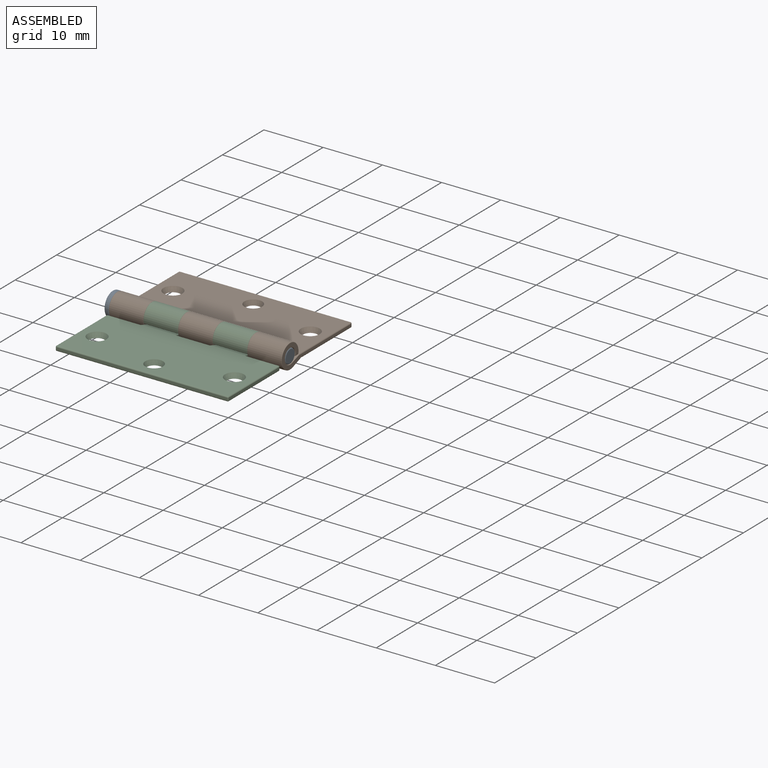
[diagram: assembled view]
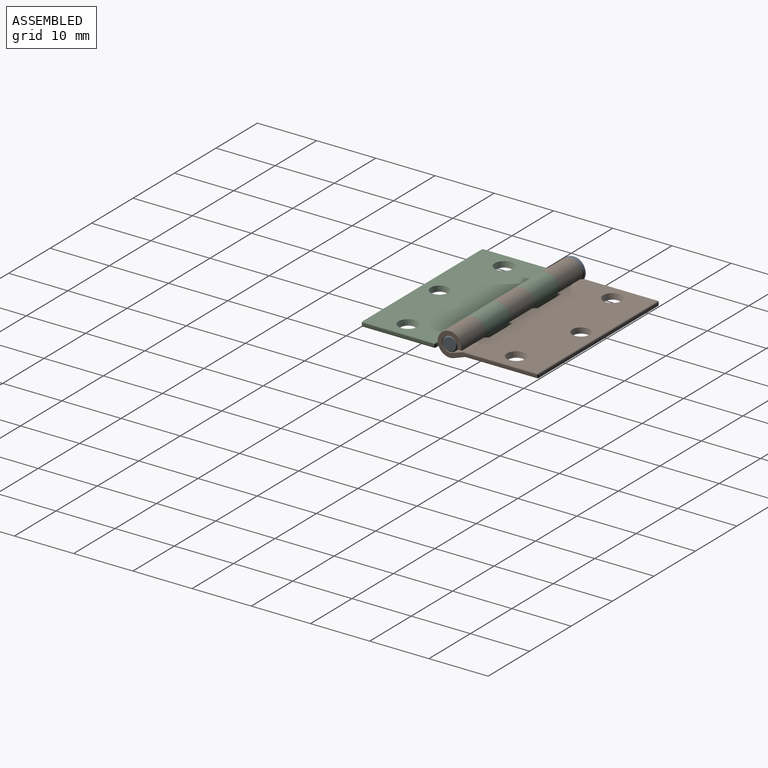
[diagram: assembled view, second angle]
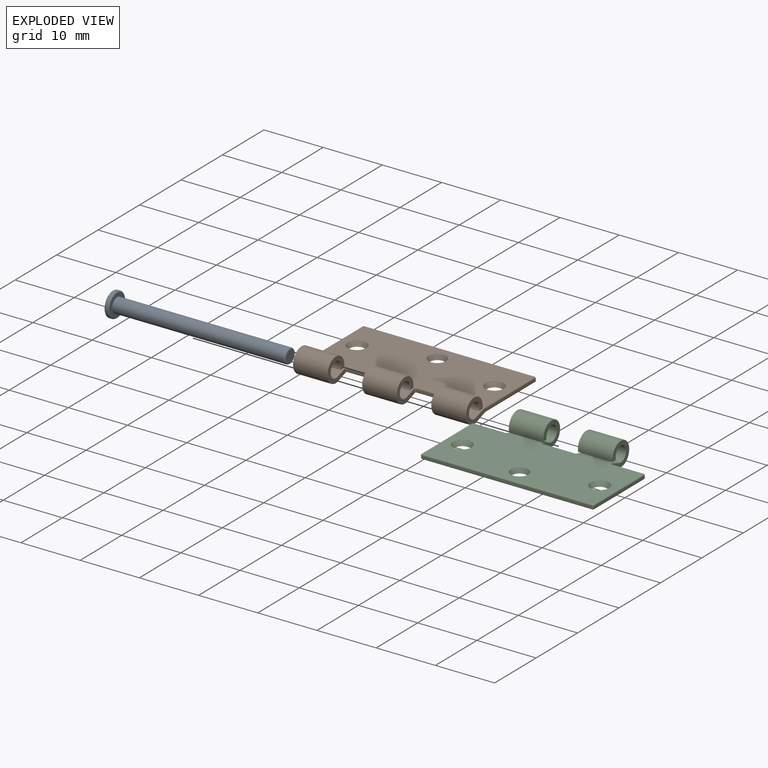
[diagram: exploded view]
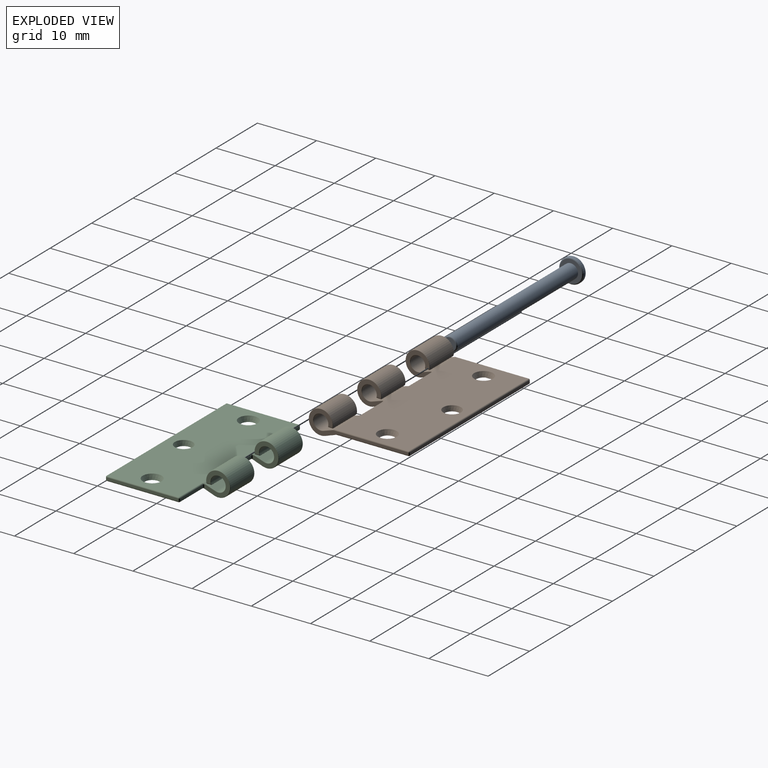
[diagram: exploded view, second angle]
ASSEMBLY  parts=3 mates=4
PART A: 8 faces, bbox 30x4.4x4.4 mm
  f0: cylinder r=1.22mm len=29mm, axis (-1,0,0), area 223.2mm2, adj f4,f7
  f1: plane 2.05x2.05mm, normal (1,0,0), area 3.3mm2, adj f7
  f2: cylinder r=2.05mm len=4.1mm, axis (1,0,0), area 5.2mm2, adj f5,f6
  f3: plane 3.7x3.7mm, normal (-1,0,0), area 10.8mm2, adj f6
  f4: plane 3.7x3.7mm, normal (1,0,0), area 6mm2, adj f0,f5
  f5: torus R=1.85mm, axis (-1,0,0), area 3.9mm2, adj f2,f4
  f6: torus R=1.85mm, axis (-1,0,0), area 3.9mm2, adj f2,f3
  f7: torus R=1.03mm, axis (-1,0,0), area 2.3mm2, adj f0,f1
PART B: 121 faces, bbox 29.3x17.3x4.5 mm
  f0: plane 5.76x1.8mm, normal (0,0.34,-0.94), area 10.7mm2, adj f2,f10,f39,f45,f115,f120
  f1: plane 5.83x2.04mm, normal (0,0.34,-0.94), area 10.7mm2, adj f3,f10,f69,f75,f98,f118
  f2: cylinder r=2.05mm len=5.74mm, axis (-1,0,0), area 62.1mm2, adj f0,f40,f41,f42,f43,f44
  f3: cylinder r=2.05mm len=5.74mm, axis (-1,0,0), area 62.1mm2, adj f1,f70,f71,f72,f73,f74
  f4: plane 5.44x0.73mm, normal (0,0,-1), area 4mm2, adj f34,f35,f42,f50
  f5: plane 5.44x0.73mm, normal (0,0,-1), area 4mm2, adj f36,f38,f72,f79
  f6: cylinder r=1.25mm len=5.74mm, axis (-1,0,0), area 38.6mm2, adj f8,f48,f49,f50,f51,f52
  f7: cylinder r=1.25mm len=5.74mm, axis (-1,0,0), area 38.6mm2, adj f9,f77,f78,f79,f80,f81
  f8: plane 5.74x2.05mm, normal (0,-0.32,0.95), area 12.4mm2, adj f6,f16,f46,f47,f53,f54,f83,f103
  f9: plane 5.75x2.03mm, normal (0,-0.32,0.95), area 12.2mm2, adj f7,f76,f82,f105,f109,f110,f114
  f10: plane 28.8x12.3mm, normal (0,0,-1), area 338.3mm2, adj f0,f1,f11,f20,f21,f22,f91,f97
  f11: plane 5.83x2.04mm, normal (0,0.34,-0.94), area 10.7mm2, adj f10,f12,f62,f68,f91,f117
  f12: cylinder r=2.05mm len=5.74mm, axis (-1,0,0), area 62.1mm2, adj f11,f63,f64,f65,f66,f67
  f13: plane 5.44x0.73mm, normal (0,0,-1), area 4mm2, adj f33,f37,f58,f65
  f14: cylinder r=1.25mm len=5.74mm, axis (-1,0,0), area 38.6mm2, adj f15,f56,f57,f58,f59,f60
  f15: plane 5.75x2.03mm, normal (0,-0.32,0.95), area 12.2mm2, adj f14,f55,f61,f86,f88,f90,f93
  f16: plane 28.8x12.3mm, normal (0,0,1), area 328.4mm2, adj f8,f20,f21,f22,f83,f84,f87,f90
  f17: plane 28.8x0.4mm, normal (0,1,0), area 11.5mm2, adj f96,f97,f101,f102
  f18: plane 16.75x4mm, normal (1,0,0), area 12.3mm2, adj f38,f74,f75,f81,f82,f98,f102,f108
  f19: plane 16.75x4mm, normal (-1,0,0), area 12.3mm2, adj f37,f55,f56,f62,f63,f91,f95,f96
  f20: cone r=1.6mm half-angle=26.6deg, axis (0,0,1), area 7.9mm2, adj f10,f16
  f21: cone r=1.2mm half-angle=20.6deg, axis (0,0,1), area 7.2mm2, adj f10,f16
  f22: cone r=1.2mm half-angle=26.6deg, axis (0,0,1), area 7.9mm2, adj f10,f16
  f23: plane 4.45x4.02mm, normal (1,0,0), area 7.3mm2, adj f29,f35,f44,f45,f52,f53,f103,f120
  f24: plane 4.45x4.02mm, normal (-1,0,0), area 7.3mm2, adj f30,f36,f69,f70,f76,f77,f106,f118
  f25: plane 5.44x0.4mm, normal (0,-1,0), area 2.2mm2, adj f29,f30,f107,f119
  f26: plane 4.45x4.02mm, normal (1,0,0), area 7.3mm2, adj f32,f33,f60,f61,f67,f68,f85,f117
  f27: plane 4.45x4.02mm, normal (-1,0,0), area 7.3mm2, adj f31,f34,f39,f40,f47,f48,f83,f115
  f28: plane 5.44x0.4mm, normal (0,-1,0), area 2.2mm2, adj f31,f32,f84,f116
  f29: cylinder r=0.2mm len=0.4mm, axis (0,0,1), area 0.1mm2, adj f23,f25,f103,f120
  f30: cylinder r=0.2mm len=0.4mm, axis (0,0,-1), area 0.1mm2, adj f24,f25,f111,f118
  f31: cylinder r=0.2mm len=0.4mm, axis (0,0,-1), area 0.1mm2, adj f27,f28,f83,f115
  f32: cylinder r=0.2mm len=0.4mm, axis (0,0,1), area 0.1mm2, adj f26,f28,f87,f117
  f33: cylinder r=0.2mm len=0.76mm, axis (0,-1,0), area 0.2mm2, adj f13,f26,f59,f66
  f34: cylinder r=0.2mm len=0.76mm, axis (0,1,0), area 0.2mm2, adj f4,f27,f41,f49
  f35: cylinder r=0.2mm len=0.76mm, axis (0,-1,0), area 0.2mm2, adj f4,f23,f43,f51
  f36: cylinder r=0.2mm len=0.76mm, axis (0,1,0), area 0.2mm2, adj f5,f24,f71,f78
  f37: cylinder r=0.2mm len=0.76mm, axis (0,-1,0), area 0.2mm2, adj f13,f19,f57,f64
  f38: cylinder r=0.2mm len=0.76mm, axis (0,1,0), area 0.2mm2, adj f5,f18,f73,f80
  f39: cylinder r=0.05mm len=1.8mm, axis (0,0.94,0.34), area 0.1mm2, adj f0,f27,f40,f115
  f40: torus R=2mm, axis (-1,0,0), area 0.8mm2, adj f2,f27,f39,f41
  f41: bspline ~0.24x0.21mm, area 0mm2, adj f2,f34,f40,f42
  f42: cylinder r=0.05mm len=5.44mm, axis (-1,0,0), area 0.4mm2, adj f2,f4,f41,f43
  f43: bspline ~0.24x0.21mm, area 0mm2, adj f2,f35,f42,f44
  f44: torus R=2mm, axis (-1,0,0), area 0.8mm2, adj f2,f23,f43,f45
  f45: cylinder r=0.05mm len=1.8mm, axis (0,-0.94,-0.34), area 0.1mm2, adj f0,f23,f44,f120
  f46: bspline ~0.09x0.08mm, area 0mm2, adj f8,f47,f83
  f47: cylinder r=0.05mm len=1.85mm, axis (0,-0.95,-0.32), area 0.1mm2, adj f8,f27,f46,f48,f83
  f48: torus R=1.3mm, axis (-1,0,0), area 0.5mm2, adj f6,f27,f47,f49
  f49: bspline ~0.25x0.21mm, area 0mm2, adj f6,f34,f48,f50
  f50: cylinder r=0.05mm len=5.44mm, axis (-1,0,0), area 0.5mm2, adj f4,f6,f49,f51
  f51: bspline ~0.25x0.22mm, area 0mm2, adj f6,f35,f50,f52
  f52: torus R=1.3mm, axis (-1,0,0), area 0.5mm2, adj f6,f23,f51,f53
  f53: cylinder r=0.05mm len=1.85mm, axis (0,0.95,0.32), area 0.1mm2, adj f8,f23,f52,f54,f103
  f54: bspline ~0.09x0.08mm, area 0mm2, adj f8,f53,f103
  f55: cylinder r=0.05mm len=1.61mm, axis (0,0.95,0.32), area 0.1mm2, adj f15,f19,f56,f93
  f56: torus R=1.3mm, axis (1,0,0), area 0.5mm2, adj f14,f19,f55,f57
  f57: bspline ~0.25x0.21mm, area 0mm2, adj f14,f37,f56,f58
  f58: cylinder r=0.05mm len=5.44mm, axis (-1,0,0), area 0.5mm2, adj f13,f14,f57,f59
  f59: bspline ~0.25x0.22mm, area 0mm2, adj f14,f33,f58,f60
  f60: torus R=1.3mm, axis (-1,0,0), area 0.5mm2, adj f14,f26,f59,f61
  f61: cylinder r=0.05mm len=1.61mm, axis (0,0.95,0.32), area 0.1mm2, adj f15,f26,f60,f86
  f62: cylinder r=0.05mm len=2.2mm, axis (0,-0.94,-0.34), area 0.2mm2, adj f11,f19,f63,f91
  f63: torus R=2mm, axis (1,0,0), area 0.8mm2, adj f12,f19,f62,f64
  f64: bspline ~0.24x0.21mm, area 0mm2, adj f12,f37,f63,f65
  f65: cylinder r=0.05mm len=5.44mm, axis (-1,0,0), area 0.4mm2, adj f12,f13,f64,f66
  f66: bspline ~0.24x0.21mm, area 0mm2, adj f12,f33,f65,f67
  f67: torus R=2mm, axis (-1,0,0), area 0.8mm2, adj f12,f26,f66,f68
  f68: cylinder r=0.05mm len=1.8mm, axis (0,-0.94,-0.34), area 0.1mm2, adj f11,f26,f67,f117
  f69: cylinder r=0.05mm len=1.8mm, axis (0,0.94,0.34), area 0.1mm2, adj f1,f24,f70,f118
  f70: torus R=2mm, axis (-1,0,0), area 0.8mm2, adj f3,f24,f69,f71
  f71: bspline ~0.24x0.21mm, area 0mm2, adj f3,f36,f70,f72
  f72: cylinder r=0.05mm len=5.44mm, axis (-1,0,0), area 0.4mm2, adj f3,f5,f71,f73
  f73: bspline ~0.24x0.21mm, area 0mm2, adj f3,f38,f72,f74
  f74: torus R=2mm, axis (1,0,0), area 0.8mm2, adj f3,f18,f73,f75
  f75: cylinder r=0.05mm len=2.2mm, axis (0,0.94,0.34), area 0.2mm2, adj f1,f18,f74,f98
  f76: cylinder r=0.05mm len=1.61mm, axis (0,-0.95,-0.32), area 0.1mm2, adj f9,f24,f77,f105
  f77: torus R=1.3mm, axis (-1,0,0), area 0.5mm2, adj f7,f24,f76,f78
  f78: bspline ~0.25x0.21mm, area 0mm2, adj f7,f36,f77,f79
  f79: cylinder r=0.05mm len=5.44mm, axis (-1,0,0), area 0.5mm2, adj f5,f7,f78,f80
  f80: bspline ~0.25x0.22mm, area 0mm2, adj f7,f38,f79,f81
  f81: torus R=1.3mm, axis (1,0,0), area 0.5mm2, adj f7,f18,f80,f82
  f82: cylinder r=0.05mm len=1.61mm, axis (0,-0.95,-0.32), area 0.1mm2, adj f9,f18,f81,f109
  f83: torus R=0.4mm, axis (0,0,1), area 0.1mm2, adj f8,f16,f27,f31,f46,f47,f84
  f84: cylinder r=0.2mm len=5.44mm, axis (-1,0,0), area 1.7mm2, adj f16,f28,f83,f87
  f85: cylinder r=0.2mm len=0.24mm, axis (0,1,0), area 0mm2, adj f26,f86,f87
  f86: bspline ~0.47x0.21mm, area 0mm2, adj f15,f61,f85,f88
  f87: torus R=0.4mm, axis (0,0,1), area 0.1mm2, adj f16,f32,f84,f85,f88,f89
  f88: bspline ~0.29x0.13mm, area 0mm2, adj f15,f86,f87,f89
  f89: bspline ~0.08x0.05mm, area 0mm2, adj f87,f88,f90
  f90: cylinder r=0.2mm len=5.59mm, axis (-1,0,0), area 0.4mm2, adj f15,f16,f89,f92
  f91: cylinder r=0.2mm len=12.3mm, axis (0,-1,0), area 3.8mm2, adj f10,f11,f19,f62,f94
  f92: bspline ~0.08x0.08mm, area 0mm2, adj f90,f93,f95
  f93: bspline ~0.54x0.23mm, area 0mm2, adj f15,f55,f92,f95
  f94: sphere r=0.2mm, area 0.1mm2, adj f91,f96,f97
  f95: cylinder r=0.2mm len=12.74mm, axis (0,1,0), area 3.9mm2, adj f16,f19,f92,f93,f99
  f96: cylinder r=0.2mm len=0.4mm, axis (0,0,-1), area 0.1mm2, adj f17,f19,f94,f99
  f97: cylinder r=0.2mm len=28.8mm, axis (-1,0,0), area 9mm2, adj f10,f17,f94,f100
  f98: cylinder r=0.2mm len=12.3mm, axis (0,1,0), area 3.8mm2, adj f1,f10,f18,f75,f100
  f99: sphere r=0.2mm, area 0.1mm2, adj f95,f96,f101
  f100: sphere r=0.2mm, area 0mm2, adj f97,f98,f102
  f101: cylinder r=0.2mm len=28.8mm, axis (-1,0,0), area 9mm2, adj f16,f17,f99,f104
  f102: cylinder r=0.2mm len=0.4mm, axis (0,0,1), area 0.1mm2, adj f17,f18,f100,f104
  f103: torus R=0.4mm, axis (0,0,1), area 0.1mm2, adj f8,f16,f23,f29,f53,f54,f107
  f104: sphere r=0.2mm, area 0mm2, adj f101,f102,f108
  f105: bspline ~0.47x0.21mm, area 0mm2, adj f9,f76,f106,f110
  f106: cylinder r=0.2mm len=0.24mm, axis (0,-1,0), area 0mm2, adj f24,f105,f111
  f107: cylinder r=0.2mm len=5.44mm, axis (-1,0,0), area 1.7mm2, adj f16,f25,f103,f111
  f108: cylinder r=0.2mm len=12.74mm, axis (0,-1,0), area 3.9mm2, adj f16,f18,f104,f109,f112
  f109: bspline ~0.6x0.26mm, area 0mm2, adj f9,f82,f108,f112
  f110: bspline ~0.21x0.09mm, area 0mm2, adj f9,f105,f111,f113
  f111: torus R=0.4mm, axis (0,0,1), area 0.1mm2, adj f16,f30,f106,f107,f110,f113
  f112: bspline ~0.08x0.08mm, area 0mm2, adj f108,f109,f114
  f113: bspline ~0.11x0.07mm, area 0mm2, adj f110,f111,f114
  f114: cylinder r=0.2mm len=5.59mm, axis (-1,0,0), area 0.4mm2, adj f9,f16,f112,f113
  f115: torus R=0.4mm, axis (0,0,-1), area 0.1mm2, adj f0,f10,f27,f31,f39,f116
  f116: cylinder r=0.2mm len=5.44mm, axis (1,0,0), area 1.7mm2, adj f10,f28,f115,f117
  f117: torus R=0.4mm, axis (0,0,-1), area 0.1mm2, adj f10,f11,f26,f32,f68,f116
  f118: torus R=0.4mm, axis (0,0,-1), area 0.1mm2, adj f1,f10,f24,f30,f69,f119
  f119: cylinder r=0.2mm len=5.44mm, axis (1,0,0), area 1.7mm2, adj f10,f25,f118,f120
  f120: torus R=0.4mm, axis (0,0,-1), area 0.1mm2, adj f0,f10,f23,f29,f45,f119
PART C: 97 faces, bbox 29.2x17.2x4.5 mm
  f0: plane 5.76x1.8mm, normal (0,-0.34,-0.94), area 10.7mm2, adj f2,f12,f33,f39,f79,f94
  f1: plane 5.76x1.8mm, normal (0,-0.34,-0.94), area 10.7mm2, adj f3,f12,f49,f55,f65,f96
  f2: cylinder r=2.05mm len=5.74mm, axis (-1,0,0), area 62.1mm2, adj f0,f34,f35,f36,f37,f38
  f3: cylinder r=2.05mm len=5.74mm, axis (-1,0,0), area 62.1mm2, adj f1,f50,f51,f52,f53,f54
  f4: plane 5.44x0.73mm, normal (0,0,-1), area 4mm2, adj f26,f31,f36,f44
  f5: plane 5.44x0.73mm, normal (0,0,-1), area 4mm2, adj f25,f32,f52,f60
  f6: cylinder r=1.25mm len=5.74mm, axis (-1,0,0), area 38.6mm2, adj f8,f42,f43,f44,f45,f46
  f7: cylinder r=1.25mm len=5.74mm, axis (-1,0,0), area 38.6mm2, adj f9,f58,f59,f60,f61,f62
  f8: plane 5.74x2.05mm, normal (0,0.32,0.95), area 12.4mm2, adj f6,f13,f40,f41,f47,f48,f90,f91
  f9: plane 5.74x2.05mm, normal (0,0.32,0.95), area 12.4mm2, adj f7,f13,f56,f57,f63,f64,f67,f93
  f10: plane 12.1x0.4mm, normal (1,0,0), area 4.8mm2, adj f70,f71,f74,f75
  f11: plane 12.1x0.4mm, normal (-1,0,0), area 4.8mm2, adj f81,f82,f86,f87
  f12: plane 28.8x12.3mm, normal (0,0,-1), area 337.2mm2, adj f0,f1,f15,f16,f17,f65,f66,f71
  f13: plane 28.8x12.3mm, normal (0,0,1), area 327.6mm2, adj f8,f9,f15,f16,f17,f67,f69,f74
  f14: plane 28.8x0.4mm, normal (0,-1,0), area 11.5mm2, adj f75,f76,f80,f81
  f15: cone r=1.6mm half-angle=26.6deg, axis (0,0,1), area 7.9mm2, adj f12,f13
  f16: cone r=1.2mm half-angle=20.6deg, axis (0,0,1), area 7.2mm2, adj f12,f13
  f17: cone r=1.2mm half-angle=26.6deg, axis (0,0,1), area 7.9mm2, adj f12,f13
  f18: plane 4.45x4.02mm, normal (1,0,0), area 7.3mm2, adj f27,f32,f54,f55,f62,f63,f65,f67
  f19: plane 5.44x0.4mm, normal (0,1,0), area 2.2mm2, adj f27,f66,f69,f70
  f20: plane 4.45x4.02mm, normal (-1,0,0), area 7.3mm2, adj f25,f28,f49,f50,f57,f58,f93,f96
  f21: plane 4.45x4.02mm, normal (1,0,0), area 7.3mm2, adj f26,f29,f38,f39,f46,f47,f91,f94
  f22: plane 5.44x0.4mm, normal (0,1,0), area 2.2mm2, adj f28,f29,f92,f95
  f23: plane 4.45x4.02mm, normal (-1,0,0), area 7.3mm2, adj f30,f31,f33,f34,f41,f42,f79,f90
  f24: plane 5.44x0.4mm, normal (0,1,0), area 2.2mm2, adj f30,f83,f87,f89
  f25: cylinder r=0.2mm len=0.76mm, axis (0,1,0), area 0.2mm2, adj f5,f20,f51,f59
  f26: cylinder r=0.2mm len=0.76mm, axis (0,-1,0), area 0.2mm2, adj f4,f21,f37,f45
  f27: cylinder r=0.2mm len=0.4mm, axis (0,0,-1), area 0.1mm2, adj f18,f19,f65,f67
  f28: cylinder r=0.2mm len=0.4mm, axis (0,0,1), area 0.1mm2, adj f20,f22,f93,f96
  f29: cylinder r=0.2mm len=0.4mm, axis (0,0,-1), area 0.1mm2, adj f21,f22,f91,f94
  f30: cylinder r=0.2mm len=0.4mm, axis (0,0,1), area 0.1mm2, adj f23,f24,f79,f90
  f31: cylinder r=0.2mm len=0.76mm, axis (0,1,0), area 0.2mm2, adj f4,f23,f35,f43
  f32: cylinder r=0.2mm len=0.76mm, axis (0,-1,0), area 0.2mm2, adj f5,f18,f53,f61
  f33: cylinder r=0.05mm len=1.8mm, axis (0,0.94,-0.34), area 0.1mm2, adj f0,f23,f34,f79
  f34: torus R=2mm, axis (1,0,0), area 0.8mm2, adj f2,f23,f33,f35
  f35: bspline ~0.24x0.21mm, area 0mm2, adj f2,f31,f34,f36
  f36: cylinder r=0.05mm len=5.44mm, axis (-1,0,0), area 0.4mm2, adj f2,f4,f35,f37
  f37: bspline ~0.24x0.21mm, area 0mm2, adj f2,f26,f36,f38
  f38: torus R=2mm, axis (1,0,0), area 0.8mm2, adj f2,f21,f37,f39
  f39: cylinder r=0.05mm len=1.8mm, axis (0,-0.94,0.34), area 0.1mm2, adj f0,f21,f38,f94
  f40: bspline ~0.09x0.08mm, area 0mm2, adj f8,f41,f90
  f41: cylinder r=0.05mm len=1.85mm, axis (0,-0.95,0.32), area 0.1mm2, adj f8,f23,f40,f42,f90
  f42: torus R=1.3mm, axis (1,0,0), area 0.5mm2, adj f6,f23,f41,f43
  f43: bspline ~0.25x0.22mm, area 0mm2, adj f6,f31,f42,f44
  f44: cylinder r=0.05mm len=5.44mm, axis (-1,0,0), area 0.5mm2, adj f4,f6,f43,f45
  f45: bspline ~0.25x0.21mm, area 0mm2, adj f6,f26,f44,f46
  f46: torus R=1.3mm, axis (1,0,0), area 0.5mm2, adj f6,f21,f45,f47
  f47: cylinder r=0.05mm len=1.85mm, axis (0,0.95,-0.32), area 0.1mm2, adj f8,f21,f46,f48,f91
  f48: bspline ~0.09x0.08mm, area 0mm2, adj f8,f47,f91
  f49: cylinder r=0.05mm len=1.8mm, axis (0,0.94,-0.34), area 0.1mm2, adj f1,f20,f50,f96
  f50: torus R=2mm, axis (1,0,0), area 0.8mm2, adj f3,f20,f49,f51
  f51: bspline ~0.24x0.21mm, area 0mm2, adj f3,f25,f50,f52
  f52: cylinder r=0.05mm len=5.44mm, axis (-1,0,0), area 0.4mm2, adj f3,f5,f51,f53
  f53: bspline ~0.24x0.21mm, area 0mm2, adj f3,f32,f52,f54
  f54: torus R=2mm, axis (1,0,0), area 0.8mm2, adj f3,f18,f53,f55
  f55: cylinder r=0.05mm len=1.8mm, axis (0,-0.94,0.34), area 0.1mm2, adj f1,f18,f54,f65
  f56: bspline ~0.09x0.08mm, area 0mm2, adj f9,f57,f93
  f57: cylinder r=0.05mm len=1.85mm, axis (0,-0.95,0.32), area 0.1mm2, adj f9,f20,f56,f58,f93
  f58: torus R=1.3mm, axis (1,0,0), area 0.5mm2, adj f7,f20,f57,f59
  f59: bspline ~0.25x0.22mm, area 0mm2, adj f7,f25,f58,f60
  f60: cylinder r=0.05mm len=5.44mm, axis (-1,0,0), area 0.5mm2, adj f5,f7,f59,f61
  f61: bspline ~0.25x0.21mm, area 0mm2, adj f7,f32,f60,f62
  f62: torus R=1.3mm, axis (1,0,0), area 0.5mm2, adj f7,f18,f61,f63
  f63: cylinder r=0.05mm len=1.85mm, axis (0,0.95,-0.32), area 0.1mm2, adj f9,f18,f62,f64,f67
  f64: bspline ~0.09x0.08mm, area 0mm2, adj f9,f63,f67
  f65: torus R=0.4mm, axis (0,0,-1), area 0.1mm2, adj f1,f12,f18,f27,f55,f66
  f66: cylinder r=0.2mm len=5.44mm, axis (-1,0,0), area 1.7mm2, adj f12,f19,f65,f68
  f67: torus R=0.4mm, axis (0,0,1), area 0.1mm2, adj f9,f13,f18,f27,f63,f64,f69
  f68: sphere r=0.2mm, area 0mm2, adj f66,f70,f71
  f69: cylinder r=0.2mm len=5.44mm, axis (-1,0,0), area 1.7mm2, adj f13,f19,f67,f72
  f70: cylinder r=0.2mm len=0.4mm, axis (0,0,1), area 0.1mm2, adj f10,f19,f68,f72
  f71: cylinder r=0.2mm len=12.1mm, axis (0,-1,0), area 3.8mm2, adj f10,f12,f68,f73
  f72: sphere r=0.2mm, area 0mm2, adj f69,f70,f74
  f73: sphere r=0.2mm, area 0.1mm2, adj f71,f75,f76
  f74: cylinder r=0.2mm len=12.1mm, axis (0,1,0), area 3.8mm2, adj f10,f13,f72,f77
  f75: cylinder r=0.2mm len=0.4mm, axis (0,0,1), area 0.1mm2, adj f10,f14,f73,f77
  f76: cylinder r=0.2mm len=28.8mm, axis (-1,0,0), area 9mm2, adj f12,f14,f73,f78
  f77: sphere r=0.2mm, area 0.1mm2, adj f74,f75,f80
  f78: sphere r=0.2mm, area 0.1mm2, adj f76,f81,f82
  f79: torus R=0.4mm, axis (0,0,-1), area 0.1mm2, adj f0,f12,f23,f30,f33,f83
  f80: cylinder r=0.2mm len=28.8mm, axis (-1,0,0), area 9mm2, adj f13,f14,f77,f84
  f81: cylinder r=0.2mm len=0.4mm, axis (0,0,-1), area 0.1mm2, adj f11,f14,f78,f84
  f82: cylinder r=0.2mm len=12.1mm, axis (0,1,0), area 3.8mm2, adj f11,f12,f78,f85
  f83: cylinder r=0.2mm len=5.44mm, axis (-1,0,0), area 1.7mm2, adj f12,f24,f79,f85
  f84: sphere r=0.2mm, area 0.1mm2, adj f80,f81,f86
  f85: sphere r=0.2mm, area 0.1mm2, adj f82,f83,f87
  f86: cylinder r=0.2mm len=12.1mm, axis (0,-1,0), area 3.8mm2, adj f11,f13,f84,f88
  f87: cylinder r=0.2mm len=0.4mm, axis (0,0,-1), area 0.1mm2, adj f11,f24,f85,f88
  f88: sphere r=0.2mm, area 0.1mm2, adj f86,f87,f89
  f89: cylinder r=0.2mm len=5.44mm, axis (-1,0,0), area 1.7mm2, adj f13,f24,f88,f90
  f90: torus R=0.4mm, axis (0,0,1), area 0.1mm2, adj f8,f13,f23,f30,f40,f41,f89
  f91: torus R=0.4mm, axis (0,0,1), area 0.1mm2, adj f8,f13,f21,f29,f47,f48,f92
  f92: cylinder r=0.2mm len=5.44mm, axis (-1,0,0), area 1.7mm2, adj f13,f22,f91,f93
  f93: torus R=0.4mm, axis (0,0,1), area 0.1mm2, adj f9,f13,f20,f28,f56,f57,f92
  f94: torus R=0.4mm, axis (0,0,-1), area 0.1mm2, adj f0,f12,f21,f29,f39,f95
  f95: cylinder r=0.2mm len=5.44mm, axis (-1,0,0), area 1.7mm2, adj f12,f22,f94,f96
  f96: torus R=0.4mm, axis (0,0,-1), area 0.1mm2, adj f1,f12,f20,f28,f49,f95
PLACE A t=(-131.81,59.74,-27.78)mm fixed
PLACE B rot(axis=(1,0,0),0deg) t=(-131.81,59.74,-27.78)mm
PLACE C rot(axis=(-1,0,0),0deg) t=(-131.81,59.71,-27.78)mm
MATE planar C.f18 <-> B.f24  axis (1,0,0) through (22.95,-23.38,-34.52)mm
MATE planar B.f70 <-> A.f0  axis (-1,0,0) through (-0.41,-23.34,-34.48)mm
MATE cylindrical A.f0 <-> C.f2  axis (-1,0,0) through (14.09,-23.34,-34.48)mm
MATE cylindrical A.f0 <-> B.f2  axis (-1,0,0) through (28.59,-23.34,-34.48)mm
